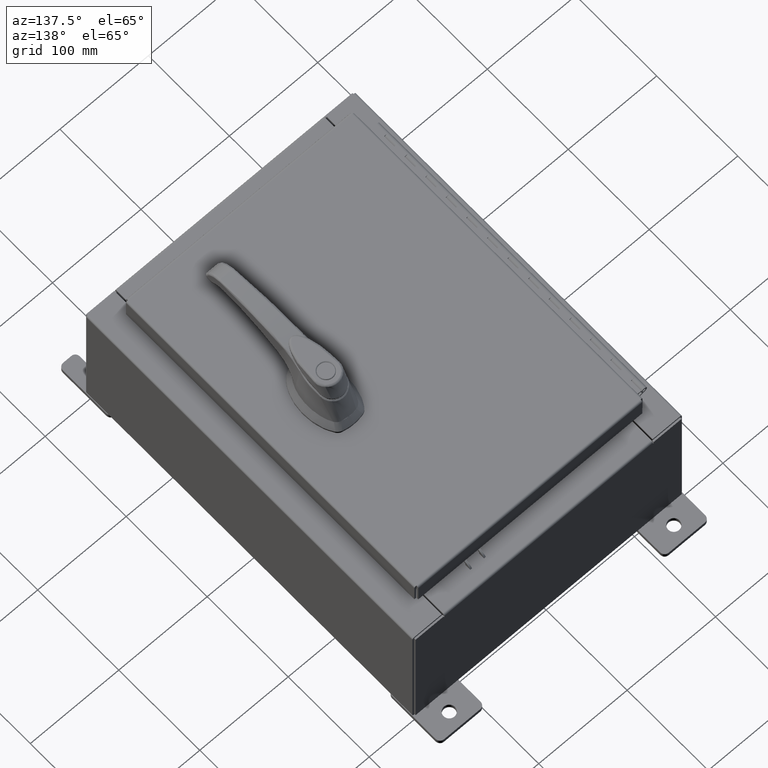
[diagram: clean part render]
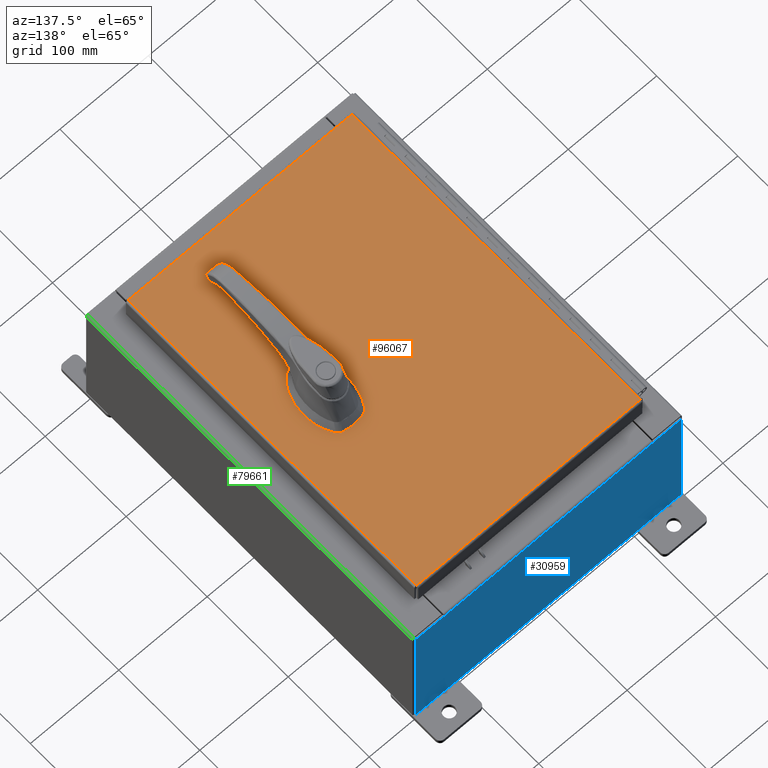
[diagram: same view with three faces highlighted in distinct colors, each labeled with its STEP entity id]
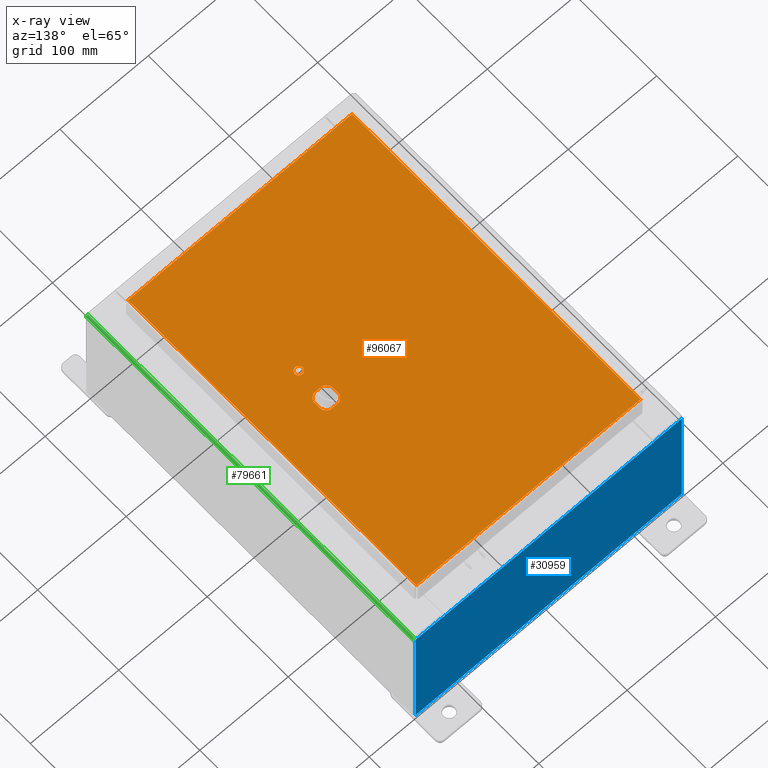
[diagram: x-ray of the same camera — body ghosted, the three highlighted faces saturated]
A machine part, auxiliary view with three faces highlighted in distinct colors.
The next image is the same camera in x-ray (body ghosted, the three faces saturated) — at least one of them is partly hidden behind the body in this view.
Their STEP definitions:

[orange] entity #96067 — the highlighted planar face has unit normal (0, 0, -1).
#469 = CARTESIAN_POINT ( 'NONE',  ( 2.577999999999998500, -1.338000000000000100, 0.0000000000000000000 ) ) ;
#3047 = DIRECTION ( 'NONE',  ( 1.000000000000000000, 0.0000000000000000000, 0.0000000000000000000 ) ) ;
#3148 = CARTESIAN_POINT ( 'NONE',  ( -4.990300000000000400, -7.006300000000000400, -2.219626494852214000E-016 ) ) ;
#3550 = CARTESIAN_POINT ( 'NONE',  ( 2.749499999999998500, -1.338000000000000100, 0.0000000000000000000 ) ) ;
#3858 = EDGE_CURVE ( 'NONE', #18034, #43957, #44261, .T. ) ;
#5801 = VECTOR ( 'NONE', #23165, 39.37007874015748100 ) ;
#7143 = AXIS2_PLACEMENT_3D ( 'NONE', #67870, #18888, #76083 ) ;
#7180 = EDGE_CURVE ( 'NONE', #43957, #23481, #71936, .T. ) ;
#7364 = EDGE_CURVE ( 'NONE', #100740, #33436, #83359, .T. ) ;
#7512 = DIRECTION ( 'NONE',  ( 1.000000000000000000, 0.0000000000000000000, 0.0000000000000000000 ) ) ;
#8356 = CARTESIAN_POINT ( 'NONE',  ( 2.175000000000072700, -0.2002273707563079800, 0.0000000000000000000 ) ) ;
#8476 = VECTOR ( 'NONE', #67195, 39.37007874015748100 ) ;
#8665 = DIRECTION ( 'NONE',  ( 1.000000000000000000, 0.0000000000000000000, 0.0000000000000000000 ) ) ;
#11235 = CARTESIAN_POINT ( 'NONE',  ( 2.406499999999998500, -1.338000000000000100, 0.0000000000000000000 ) ) ;
#11819 = CARTESIAN_POINT ( 'NONE',  ( 4.990299999999998600, -7.006300000000000400, 3.244069492476312400E-016 ) ) ;
#11936 = EDGE_LOOP ( 'NONE', ( #33832, #99158, #78585, #21694 ) ) ;
#13587 = ORIENTED_EDGE ( 'NONE', *, *, #57642, .F. ) ;
#14653 = EDGE_CURVE ( 'NONE', #50837, #40480, #22767, .T. ) ;
#16283 = CARTESIAN_POINT ( 'NONE',  ( 2.980999999999924400, 0.2002273707563080300, 0.0000000000000000000 ) ) ;
#16691 = ORIENTED_EDGE ( 'NONE', *, *, #3858, .F. ) ;
#17190 = EDGE_CURVE ( 'NONE', #18090, #30751, #71052, .T. ) ;
#17445 = CARTESIAN_POINT ( 'NONE',  ( 2.778227370756308100, 0.4029999999999252000, 0.0000000000000000000 ) ) ;
#18034 = VERTEX_POINT ( 'NONE', #37950 ) ;
#18090 = VERTEX_POINT ( 'NONE', #95448 ) ;
#18888 = DIRECTION ( 'NONE',  ( -0.0000000000000000000, 0.0000000000000000000, 1.000000000000000000 ) ) ;
#20164 = VECTOR ( 'NONE', #64625, 39.37007874015748100 ) ;
#20242 = CIRCLE ( 'NONE', #90329, 0.4499999999999156900 ) ;
#20544 = DIRECTION ( 'NONE',  ( 0.0000000000000000000, -1.000000000000000000, 0.0000000000000000000 ) ) ;
#20695 = VECTOR ( 'NONE', #31050, 39.37007874015748100 ) ;
#21343 = CARTESIAN_POINT ( 'NONE',  ( 2.577999999999998500, -1.338000000000000100, 0.0000000000000000000 ) ) ;
#21694 = ORIENTED_EDGE ( 'NONE', *, *, #67455, .T. ) ;
#22528 = EDGE_CURVE ( 'NONE', #80632, #33436, #64219, .T. ) ;
#22767 = LINE ( 'NONE', #48178, #20164 ) ;
#23165 = DIRECTION ( 'NONE',  ( -1.000000000000000000, -0.0000000000000000000, -0.0000000000000000000 ) ) ;
#23481 = VERTEX_POINT ( 'NONE', #76053 ) ;
#25795 = FACE_BOUND ( 'NONE', #93110, .T. ) ;
#25834 = AXIS2_PLACEMENT_3D ( 'NONE', #469, #57670, #8665 ) ;
#26192 = VERTEX_POINT ( 'NONE', #3550 ) ;
#26720 = DIRECTION ( 'NONE',  ( 1.000000000000000000, 0.0000000000000000000, 0.0000000000000000000 ) ) ;
#27978 = DIRECTION ( 'NONE',  ( 1.000000000000000000, -0.0000000000000000000, -0.0000000000000000000 ) ) ;
#28923 = DIRECTION ( 'NONE',  ( -0.0000000000000000000, 0.0000000000000000000, 1.000000000000000000 ) ) ;
#29557 = DIRECTION ( 'NONE',  ( 1.000000000000000000, 0.0000000000000000000, 0.0000000000000000000 ) ) ;
#30494 = ORIENTED_EDGE ( 'NONE', *, *, #22528, .T. ) ;
#30751 = VERTEX_POINT ( 'NONE', #68608 ) ;
#30870 = DIRECTION ( 'NONE',  ( -1.000000000000000000, 0.0000000000000000000, -0.0000000000000000000 ) ) ;
#31050 = DIRECTION ( 'NONE',  ( 1.364372904336406500E-015, -1.000000000000000000, 0.0000000000000000000 ) ) ;
#32079 = VECTOR ( 'NONE', #27978, 39.37007874015748100 ) ;
#33436 = VERTEX_POINT ( 'NONE', #92213 ) ;
#33832 = ORIENTED_EDGE ( 'NONE', *, *, #105668, .T. ) ;
#36928 = VERTEX_POINT ( 'NONE', #11235 ) ;
#37308 = CIRCLE ( 'NONE', #37417, 0.1715000000000000700 ) ;
#37417 = AXIS2_PLACEMENT_3D ( 'NONE', #21343, #78456, #29557 ) ;
#37542 = ORIENTED_EDGE ( 'NONE', *, *, #7180, .F. ) ;
#37950 = CARTESIAN_POINT ( 'NONE',  ( 2.175000000000072700, 0.2002273707563079800, 0.0000000000000000000 ) ) ;
#38018 = AXIS2_PLACEMENT_3D ( 'NONE', #101006, #52042, #3047 ) ;
#40480 = VERTEX_POINT ( 'NONE', #66084 ) ;
#43957 = VERTEX_POINT ( 'NONE', #8356 ) ;
#44261 = LINE ( 'NONE', #77604, #90272 ) ;
#47514 = FACE_OUTER_BOUND ( 'NONE', #11936, .T. ) ;
#48178 = CARTESIAN_POINT ( 'NONE',  ( 0.0000000000000000000, 0.4029999999999252000, 0.0000000000000000000 ) ) ;
#49294 = VERTEX_POINT ( 'NONE', #3148 ) ;
#50837 = VERTEX_POINT ( 'NONE', #17445 ) ;
#51258 = LINE ( 'NONE', #102075, #94716 ) ;
#52042 = DIRECTION ( 'NONE',  ( -0.0000000000000000000, 0.0000000000000000000, 1.000000000000000000 ) ) ;
#55860 = ORIENTED_EDGE ( 'NONE', *, *, #82734, .F. ) ;
#56366 = LINE ( 'NONE', #85082, #32079 ) ;
#56500 = DIRECTION ( 'NONE',  ( -0.0000000000000000000, 0.0000000000000000000, 1.000000000000000000 ) ) ;
#57642 = EDGE_CURVE ( 'NONE', #23481, #100740, #102741, .T. ) ;
#57670 = DIRECTION ( 'NONE',  ( -0.0000000000000000000, 0.0000000000000000000, 1.000000000000000000 ) ) ;
#58112 = ORIENTED_EDGE ( 'NONE', *, *, #7364, .F. ) ;
#58976 = CARTESIAN_POINT ( 'NONE',  ( 4.990299999999998600, -7.006300000000000400, 3.244069492476312400E-016 ) ) ;
#59512 = ORIENTED_EDGE ( 'NONE', *, *, #59614, .F. ) ;
#59614 = EDGE_CURVE ( 'NONE', #40480, #18034, #59760, .T. ) ;
#59760 = CIRCLE ( 'NONE', #38018, 0.4499999999999156900 ) ;
#60702 = EDGE_CURVE ( 'NONE', #70836, #18090, #76263, .T. ) ;
#64219 = LINE ( 'NONE', #88165, #20695 ) ;
#64625 = DIRECTION ( 'NONE',  ( -1.000000000000000000, 0.0000000000000000000, 0.0000000000000000000 ) ) ;
#66084 = CARTESIAN_POINT ( 'NONE',  ( 2.377772629243688900, 0.4029999999999252000, 0.0000000000000000000 ) ) ;
#67097 = CARTESIAN_POINT ( 'NONE',  ( 0.0000000000000000000, -0.4029999999999252000, 0.0000000000000000000 ) ) ;
#67195 = DIRECTION ( 'NONE',  ( 0.0000000000000000000, 1.000000000000000000, 0.0000000000000000000 ) ) ;
#67455 = EDGE_CURVE ( 'NONE', #30751, #49294, #51258, .T. ) ;
#67870 = CARTESIAN_POINT ( 'NONE',  ( 2.577999999999998500, 0.0000000000000000000, 0.0000000000000000000 ) ) ;
#68608 = CARTESIAN_POINT ( 'NONE',  ( -4.990300000000000400, 7.006300000000000400, -2.048885995248197400E-016 ) ) ;
#69249 = FACE_BOUND ( 'NONE', #77438, .T. ) ;
#70836 = VERTEX_POINT ( 'NONE', #11819 ) ;
#71052 = LINE ( 'NONE', #72450, #5801 ) ;
#71569 = CARTESIAN_POINT ( 'NONE',  ( 0.0000000000000000000, 0.0000000000000000000, 0.0000000000000000000 ) ) ;
#71936 = CIRCLE ( 'NONE', #7143, 0.4499999999999156900 ) ;
#72450 = CARTESIAN_POINT ( 'NONE',  ( 4.990299999999998600, 7.006300000000000400, -2.219626494852214000E-016 ) ) ;
#72539 = ORIENTED_EDGE ( 'NONE', *, *, #80585, .F. ) ;
#75140 = AXIS2_PLACEMENT_3D ( 'NONE', #71569, #79757, #30870 ) ;
#76053 = CARTESIAN_POINT ( 'NONE',  ( 2.377772629243688900, -0.4029999999999252000, 0.0000000000000000000 ) ) ;
#76083 = DIRECTION ( 'NONE',  ( 1.000000000000000000, 0.0000000000000000000, 0.0000000000000000000 ) ) ;
#76263 = LINE ( 'NONE', #58976, #8476 ) ;
#76746 = CIRCLE ( 'NONE', #25834, 0.1715000000000000700 ) ;
#77438 = EDGE_LOOP ( 'NONE', ( #30494, #58112, #13587, #37542, #16691, #59512, #81077, #55860 ) ) ;
#77604 = CARTESIAN_POINT ( 'NONE',  ( 2.175000000000072700, 0.0000000000000000000, 0.0000000000000000000 ) ) ;
#77825 = CARTESIAN_POINT ( 'NONE',  ( 2.577999999999998500, 0.0000000000000000000, 0.0000000000000000000 ) ) ;
#77950 = DIRECTION ( 'NONE',  ( 0.0000000000000000000, -1.000000000000000000, 0.0000000000000000000 ) ) ;
#78456 = DIRECTION ( 'NONE',  ( -0.0000000000000000000, 0.0000000000000000000, 1.000000000000000000 ) ) ;
#78585 = ORIENTED_EDGE ( 'NONE', *, *, #17190, .T. ) ;
#79147 = EDGE_CURVE ( 'NONE', #36928, #26192, #37308, .T. ) ;
#79757 = DIRECTION ( 'NONE',  ( 0.0000000000000000000, 0.0000000000000000000, -1.000000000000000000 ) ) ;
#79870 = PLANE ( 'NONE',  #75140 ) ;
#80585 = EDGE_CURVE ( 'NONE', #26192, #36928, #76746, .T. ) ;
#80632 = VERTEX_POINT ( 'NONE', #16283 ) ;
#80946 = VECTOR ( 'NONE', #26720, 39.37007874015748100 ) ;
#81077 = ORIENTED_EDGE ( 'NONE', *, *, #14653, .F. ) ;
#82734 = EDGE_CURVE ( 'NONE', #80632, #50837, #20242, .T. ) ;
#83359 = CIRCLE ( 'NONE', #90769, 0.4499999999999156900 ) ;
#84682 = ORIENTED_EDGE ( 'NONE', *, *, #79147, .F. ) ;
#85082 = CARTESIAN_POINT ( 'NONE',  ( -4.990300000000000400, -7.006300000000000400, -2.219626494852214000E-016 ) ) ;
#86009 = DIRECTION ( 'NONE',  ( 1.000000000000000000, 0.0000000000000000000, 0.0000000000000000000 ) ) ;
#88165 = CARTESIAN_POINT ( 'NONE',  ( 2.980999999999924400, 4.067195627826724000E-015, 0.0000000000000000000 ) ) ;
#88906 = CARTESIAN_POINT ( 'NONE',  ( 2.778227370756308100, -0.4029999999999252000, 0.0000000000000000000 ) ) ;
#90272 = VECTOR ( 'NONE', #77950, 39.37007874015748100 ) ;
#90329 = AXIS2_PLACEMENT_3D ( 'NONE', #105458, #56500, #7512 ) ;
#90769 = AXIS2_PLACEMENT_3D ( 'NONE', #77825, #28923, #86009 ) ;
#92213 = CARTESIAN_POINT ( 'NONE',  ( 2.980999999999924800, -0.2002273707563079800, 0.0000000000000000000 ) ) ;
#93110 = EDGE_LOOP ( 'NONE', ( #72539, #84682 ) ) ;
#94716 = VECTOR ( 'NONE', #20544, 39.37007874015748100 ) ;
#95448 = CARTESIAN_POINT ( 'NONE',  ( 4.990299999999998600, 7.006300000000000400, -2.219626494852214000E-016 ) ) ;
#96067 = ADVANCED_FACE ( 'NONE', ( #25795, #47514, #69249 ), #79870, .F. ) ;
#99158 = ORIENTED_EDGE ( 'NONE', *, *, #60702, .T. ) ;
#100740 = VERTEX_POINT ( 'NONE', #88906 ) ;
#101006 = CARTESIAN_POINT ( 'NONE',  ( 2.577999999999998500, 0.0000000000000000000, 0.0000000000000000000 ) ) ;
#102075 = CARTESIAN_POINT ( 'NONE',  ( -4.990300000000000400, 7.006300000000000400, -2.048885995248197400E-016 ) ) ;
#102741 = LINE ( 'NONE', #67097, #80946 ) ;
#105458 = CARTESIAN_POINT ( 'NONE',  ( 2.577999999999998500, 0.0000000000000000000, 0.0000000000000000000 ) ) ;
#105668 = EDGE_CURVE ( 'NONE', #49294, #70836, #56366, .T. ) ;

[blue] entity #30959 — the highlighted planar face has unit normal (0, -1, 0).
#1854 = DIRECTION ( 'NONE',  ( 0.0000000000000000000, 0.0000000000000000000, -1.000000000000000000 ) ) ;
#3463 = LINE ( 'NONE', #50241, #44425 ) ;
#4738 = LINE ( 'NONE', #80452, #91729 ) ;
#5394 = EDGE_LOOP ( 'NONE', ( #95544, #103833, #24209, #31581, #72554, #32770, #30680, #98186, #55688, #10067, #87490, #12237 ) ) ;
#9439 = CARTESIAN_POINT ( 'NONE',  ( -4.674549999999999100, -0.0000000000000000000, 0.0000000000000000000 ) ) ;
#10067 = ORIENTED_EDGE ( 'NONE', *, *, #79960, .T. ) ;
#11488 = VERTEX_POINT ( 'NONE', #35243 ) ;
#12237 = ORIENTED_EDGE ( 'NONE', *, *, #38969, .T. ) ;
#15325 = VERTEX_POINT ( 'NONE', #63265 ) ;
#17878 = CARTESIAN_POINT ( 'NONE',  ( -4.674549999999999100, 0.0000000000000000000, 2.874949999999999700 ) ) ;
#24209 = ORIENTED_EDGE ( 'NONE', *, *, #94052, .F. ) ;
#24241 = CARTESIAN_POINT ( 'NONE',  ( 5.925300000000001800, 0.0000000000000000000, -2.925300000000000000 ) ) ;
#24593 = CARTESIAN_POINT ( 'NONE',  ( -5.925299999999999100, 0.0000000000000000000, 2.925300000000000000 ) ) ;
#25791 = EDGE_CURVE ( 'NONE', #26081, #80249, #56246, .T. ) ;
#25913 = DIRECTION ( 'NONE',  ( 0.0000000000000000000, 0.0000000000000000000, 1.000000000000000000 ) ) ;
#26081 = VERTEX_POINT ( 'NONE', #17878 ) ;
#27403 = EDGE_CURVE ( 'NONE', #83589, #26081, #47081, .T. ) ;
#28330 = EDGE_CURVE ( 'NONE', #30430, #81622, #3463, .T. ) ;
#29036 = CARTESIAN_POINT ( 'NONE',  ( 4.674550000000001800, 0.0000000000000000000, 2.874949999999999700 ) ) ;
#29542 = DIRECTION ( 'NONE',  ( -0.0000000000000000000, 1.000000000000000000, -0.0000000000000000000 ) ) ;
#29981 = CARTESIAN_POINT ( 'NONE',  ( -4.637199999999999100, -1.707404996040164500E-016, 2.912300000000000100 ) ) ;
#30388 = CARTESIAN_POINT ( 'NONE',  ( 4.637200000000001800, 0.0000000000000000000, 2.874949999999999700 ) ) ;
#30430 = VERTEX_POINT ( 'NONE', #32272 ) ;
#30680 = ORIENTED_EDGE ( 'NONE', *, *, #84134, .F. ) ;
#30959 = ADVANCED_FACE ( 'NONE', ( #64647 ), #87129, .F. ) ;
#31140 = VECTOR ( 'NONE', #1854, 39.37007874015748100 ) ;
#31574 = LINE ( 'NONE', #82364, #50701 ) ;
#31581 = ORIENTED_EDGE ( 'NONE', *, *, #38195, .T. ) ;
#31583 = DIRECTION ( 'NONE',  ( -1.085143195100001200E-014, 0.0000000000000000000, -1.000000000000000000 ) ) ;
#31949 = VECTOR ( 'NONE', #25913, 39.37007874015748100 ) ;
#32272 = CARTESIAN_POINT ( 'NONE',  ( 5.925300000000001800, 0.0000000000000000000, 2.925300000000000000 ) ) ;
#32770 = ORIENTED_EDGE ( 'NONE', *, *, #33986, .F. ) ;
#32842 = DIRECTION ( 'NONE',  ( -0.0000000000000000000, -0.0000000000000000000, 1.000000000000000000 ) ) ;
#33611 = VERTEX_POINT ( 'NONE', #70046 ) ;
#33986 = EDGE_CURVE ( 'NONE', #105726, #84812, #42057, .T. ) ;
#34227 = CARTESIAN_POINT ( 'NONE',  ( 4.674550000000000900, 0.0000000000000000000, 2.925300000000000000 ) ) ;
#34395 = CARTESIAN_POINT ( 'NONE',  ( -4.637199999999999100, -0.0000000000000000000, 0.0000000000000000000 ) ) ;
#34750 = EDGE_CURVE ( 'NONE', #43329, #30430, #71380, .T. ) ;
#35243 = CARTESIAN_POINT ( 'NONE',  ( -5.925299999999999100, 0.0000000000000000000, 2.925300000000000000 ) ) ;
#38195 = EDGE_CURVE ( 'NONE', #33611, #15325, #77409, .T. ) ;
#38227 = DIRECTION ( 'NONE',  ( 0.0000000000000000000, -1.000000000000000000, 0.0000000000000000000 ) ) ;
#38521 = VECTOR ( 'NONE', #32842, 39.37007874015748100 ) ;
#38969 = EDGE_CURVE ( 'NONE', #11488, #80249, #65859, .T. ) ;
#39589 = AXIS2_PLACEMENT_3D ( 'NONE', #70709, #38227, #95375 ) ;
#39702 = DIRECTION ( 'NONE',  ( -0.0000000000000000000, 1.000000000000000000, -0.0000000000000000000 ) ) ;
#42057 = CIRCLE ( 'NONE', #104054, 0.01867500000000003900 ) ;
#43329 = VERTEX_POINT ( 'NONE', #34227 ) ;
#44425 = VECTOR ( 'NONE', #99546, 39.37007874015748100 ) ;
#46918 = CARTESIAN_POINT ( 'NONE',  ( -5.925299999999999100, 0.0000000000000000000, 2.925300000000000000 ) ) ;
#47079 = VECTOR ( 'NONE', #71571, 39.37007874015748100 ) ;
#47081 = CIRCLE ( 'NONE', #88695, 0.01867500000000003900 ) ;
#50241 = CARTESIAN_POINT ( 'NONE',  ( 5.925300000000001800, 0.0000000000000000000, 2.925300000000000000 ) ) ;
#50701 = VECTOR ( 'NONE', #65996, 39.37007874015748100 ) ;
#55422 = CARTESIAN_POINT ( 'NONE',  ( -5.925299999999999100, 0.0000000000000000000, -2.925300000000000000 ) ) ;
#55435 = LINE ( 'NONE', #34395, #31140 ) ;
#55688 = ORIENTED_EDGE ( 'NONE', *, *, #28330, .T. ) ;
#56246 = LINE ( 'NONE', #9439, #31949 ) ;
#63265 = CARTESIAN_POINT ( 'NONE',  ( 4.637200000000001800, 0.0000000000000000000, 2.912300000000000100 ) ) ;
#63310 = VECTOR ( 'NONE', #68988, 39.37007874015748100 ) ;
#63652 = DIRECTION ( 'NONE',  ( -1.000000000000000000, -0.0000000000000000000, -0.0000000000000000000 ) ) ;
#64647 = FACE_OUTER_BOUND ( 'NONE', #5394, .T. ) ;
#65752 = CARTESIAN_POINT ( 'NONE',  ( -4.674549999999999100, 0.0000000000000000000, 2.925300000000000000 ) ) ;
#65859 = LINE ( 'NONE', #76848, #63310 ) ;
#65996 = DIRECTION ( 'NONE',  ( 0.0000000000000000000, 0.0000000000000000000, 1.000000000000000000 ) ) ;
#68988 = DIRECTION ( 'NONE',  ( 1.000000000000000000, 0.0000000000000000000, 0.0000000000000000000 ) ) ;
#70046 = CARTESIAN_POINT ( 'NONE',  ( -4.637199999999999100, -1.707404996040164500E-016, 2.912300000000000100 ) ) ;
#70709 = CARTESIAN_POINT ( 'NONE',  ( 0.0000000000000000000, 0.0000000000000000000, 0.0000000000000000000 ) ) ;
#71380 = LINE ( 'NONE', #46918, #47079 ) ;
#71571 = DIRECTION ( 'NONE',  ( 1.000000000000000000, 0.0000000000000000000, 0.0000000000000000000 ) ) ;
#72554 = ORIENTED_EDGE ( 'NONE', *, *, #89822, .F. ) ;
#76848 = CARTESIAN_POINT ( 'NONE',  ( -5.925299999999999100, 0.0000000000000000000, 2.925300000000000000 ) ) ;
#77409 = LINE ( 'NONE', #29981, #101762 ) ;
#78440 = CARTESIAN_POINT ( 'NONE',  ( 4.655875000000001800, 0.0000000000000000000, 2.874949999999999700 ) ) ;
#79960 = EDGE_CURVE ( 'NONE', #81622, #83402, #102426, .T. ) ;
#80218 = CARTESIAN_POINT ( 'NONE',  ( -4.637199999999999100, -0.0000000000000000000, 2.874949999999999700 ) ) ;
#80249 = VERTEX_POINT ( 'NONE', #65752 ) ;
#80452 = CARTESIAN_POINT ( 'NONE',  ( 4.674549999999970700, -0.0000000000000000000, -5.072556122654679100E-014 ) ) ;
#80624 = VECTOR ( 'NONE', #63652, 39.37007874015748100 ) ;
#81622 = VERTEX_POINT ( 'NONE', #24241 ) ;
#82364 = CARTESIAN_POINT ( 'NONE',  ( 4.637200000000001800, 0.0000000000000000000, 0.0000000000000000000 ) ) ;
#83402 = VERTEX_POINT ( 'NONE', #89625 ) ;
#83589 = VERTEX_POINT ( 'NONE', #80218 ) ;
#84134 = EDGE_CURVE ( 'NONE', #43329, #105726, #4738, .T. ) ;
#84812 = VERTEX_POINT ( 'NONE', #30388 ) ;
#86652 = DIRECTION ( 'NONE',  ( 0.0000000000000000000, 0.0000000000000000000, -1.000000000000000000 ) ) ;
#87129 = PLANE ( 'NONE',  #39589 ) ;
#87490 = ORIENTED_EDGE ( 'NONE', *, *, #105034, .T. ) ;
#88603 = CARTESIAN_POINT ( 'NONE',  ( -4.655874999999999100, 0.0000000000000000000, 2.874949999999999700 ) ) ;
#88695 = AXIS2_PLACEMENT_3D ( 'NONE', #88603, #39702, #96859 ) ;
#89625 = CARTESIAN_POINT ( 'NONE',  ( -5.925299999999999100, 0.0000000000000000000, -2.925300000000000000 ) ) ;
#89822 = EDGE_CURVE ( 'NONE', #84812, #15325, #31574, .T. ) ;
#91729 = VECTOR ( 'NONE', #31583, 39.37007874015748100 ) ;
#94052 = EDGE_CURVE ( 'NONE', #33611, #83589, #55435, .T. ) ;
#94972 = DIRECTION ( 'NONE',  ( 1.000000000000000000, 0.0000000000000000000, 0.0000000000000000000 ) ) ;
#95375 = DIRECTION ( 'NONE',  ( 0.0000000000000000000, -0.0000000000000000000, -1.000000000000000000 ) ) ;
#95544 = ORIENTED_EDGE ( 'NONE', *, *, #25791, .F. ) ;
#96859 = DIRECTION ( 'NONE',  ( 0.0000000000000000000, 0.0000000000000000000, -1.000000000000000000 ) ) ;
#98186 = ORIENTED_EDGE ( 'NONE', *, *, #34750, .T. ) ;
#99546 = DIRECTION ( 'NONE',  ( 0.0000000000000000000, 0.0000000000000000000, -1.000000000000000000 ) ) ;
#101153 = LINE ( 'NONE', #24593, #38521 ) ;
#101762 = VECTOR ( 'NONE', #94972, 39.37007874015748100 ) ;
#102426 = LINE ( 'NONE', #55422, #80624 ) ;
#103833 = ORIENTED_EDGE ( 'NONE', *, *, #27403, .F. ) ;
#104054 = AXIS2_PLACEMENT_3D ( 'NONE', #78440, #29542, #86652 ) ;
#105034 = EDGE_CURVE ( 'NONE', #83402, #11488, #101153, .T. ) ;
#105726 = VERTEX_POINT ( 'NONE', #29036 ) ;

[green] entity #79661 — the highlighted cylindrical surface (edge-blend (fillet) strip) has radius 2.2276 mm, axis along (0, 1, 0).
#1390 = VECTOR ( 'NONE', #93266, 39.37007874015748100 ) ;
#4726 = DIRECTION ( 'NONE',  ( -0.0000000000000000000, -1.000000000000000000, -0.0000000000000000000 ) ) ;
#6689 = LINE ( 'NONE', #78002, #79577 ) ;
#10957 = DIRECTION ( 'NONE',  ( -0.0000000000000000000, -1.000000000000000000, -0.0000000000000000000 ) ) ;
#11611 = FACE_OUTER_BOUND ( 'NONE', #35259, .T. ) ;
#12951 = DIRECTION ( 'NONE',  ( 0.0000000000000000000, 1.000000000000000000, 0.0000000000000000000 ) ) ;
#14521 = VERTEX_POINT ( 'NONE', #14568 ) ;
#14568 = CARTESIAN_POINT ( 'NONE',  ( 5.912300000000019700, 7.925300000000000000, 5.925300000000001800 ) ) ;
#15079 = CARTESIAN_POINT ( 'NONE',  ( 5.912300000000019700, -7.925300000000000000, 5.925300000000001800 ) ) ;
#15758 = VERTEX_POINT ( 'NONE', #15079 ) ;
#19829 = ORIENTED_EDGE ( 'NONE', *, *, #95143, .F. ) ;
#23160 = LINE ( 'NONE', #36117, #1390 ) ;
#29088 = DIRECTION ( 'NONE',  ( 1.245996804407870000E-014, 0.0000000000000000000, 1.000000000000000000 ) ) ;
#30867 = CYLINDRICAL_SURFACE ( 'NONE', #57312, 0.08770000000000026400 ) ;
#33799 = EDGE_CURVE ( 'NONE', #91585, #15758, #49752, .T. ) ;
#35259 = EDGE_LOOP ( 'NONE', ( #19829, #68668, #72143, #48709 ) ) ;
#36117 = CARTESIAN_POINT ( 'NONE',  ( 5.912300000000019700, -7.925300000000000000, 5.925300000000001800 ) ) ;
#38853 = CIRCLE ( 'NONE', #105013, 0.08770000000000026400 ) ;
#47459 = DIRECTION ( 'NONE',  ( 0.0000000000000000000, 1.000000000000000000, 0.0000000000000000000 ) ) ;
#48709 = ORIENTED_EDGE ( 'NONE', *, *, #33799, .F. ) ;
#49752 = CIRCLE ( 'NONE', #60213, 0.08770000000000026400 ) ;
#53750 = CARTESIAN_POINT ( 'NONE',  ( 6.000000000000020400, -7.925300000000000000, 5.837600000000001000 ) ) ;
#57151 = EDGE_CURVE ( 'NONE', #14521, #95901, #38853, .T. ) ;
#57312 = AXIS2_PLACEMENT_3D ( 'NONE', #102709, #12951, #29088 ) ;
#59941 = CARTESIAN_POINT ( 'NONE',  ( 5.912300000000019700, -7.925300000000000000, 5.837600000000001000 ) ) ;
#60213 = AXIS2_PLACEMENT_3D ( 'NONE', #59941, #10957, #68151 ) ;
#68151 = DIRECTION ( 'NONE',  ( 0.0000000000000000000, 0.0000000000000000000, 1.000000000000000000 ) ) ;
#68668 = ORIENTED_EDGE ( 'NONE', *, *, #57151, .F. ) ;
#72143 = ORIENTED_EDGE ( 'NONE', *, *, #79919, .T. ) ;
#78002 = CARTESIAN_POINT ( 'NONE',  ( 6.000000000000020400, 7.925300000000000000, 5.837600000000001000 ) ) ;
#79577 = VECTOR ( 'NONE', #4726, 39.37007874015748100 ) ;
#79661 = ADVANCED_FACE ( 'NONE', ( #11611 ), #30867, .T. ) ;
#79919 = EDGE_CURVE ( 'NONE', #14521, #15758, #23160, .T. ) ;
#91585 = VERTEX_POINT ( 'NONE', #53750 ) ;
#93266 = DIRECTION ( 'NONE',  ( -0.0000000000000000000, -1.000000000000000000, -0.0000000000000000000 ) ) ;
#93271 = CARTESIAN_POINT ( 'NONE',  ( 6.000000000000020400, 7.925300000000000000, 5.837600000000001000 ) ) ;
#95143 = EDGE_CURVE ( 'NONE', #95901, #91585, #6689, .T. ) ;
#95901 = VERTEX_POINT ( 'NONE', #93271 ) ;
#96423 = CARTESIAN_POINT ( 'NONE',  ( 5.912300000000019700, 7.925300000000000000, 5.837600000000001000 ) ) ;
#102709 = CARTESIAN_POINT ( 'NONE',  ( 5.912300000000019700, 7.925300000000000000, 5.837600000000001000 ) ) ;
#104641 = DIRECTION ( 'NONE',  ( 0.0000000000000000000, 0.0000000000000000000, 1.000000000000000000 ) ) ;
#105013 = AXIS2_PLACEMENT_3D ( 'NONE', #96423, #47459, #104641 ) ;